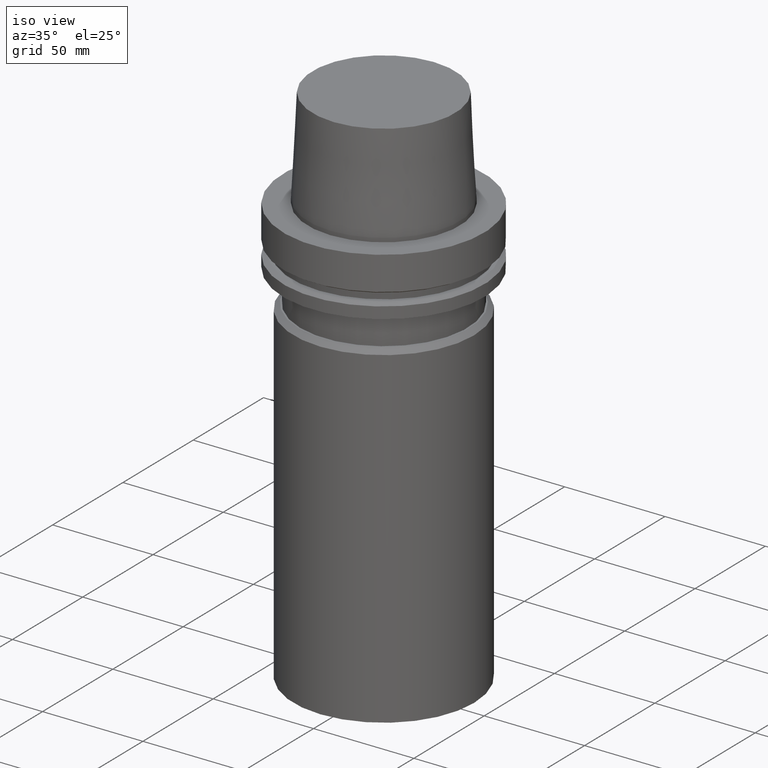
[diagram: clean part render]
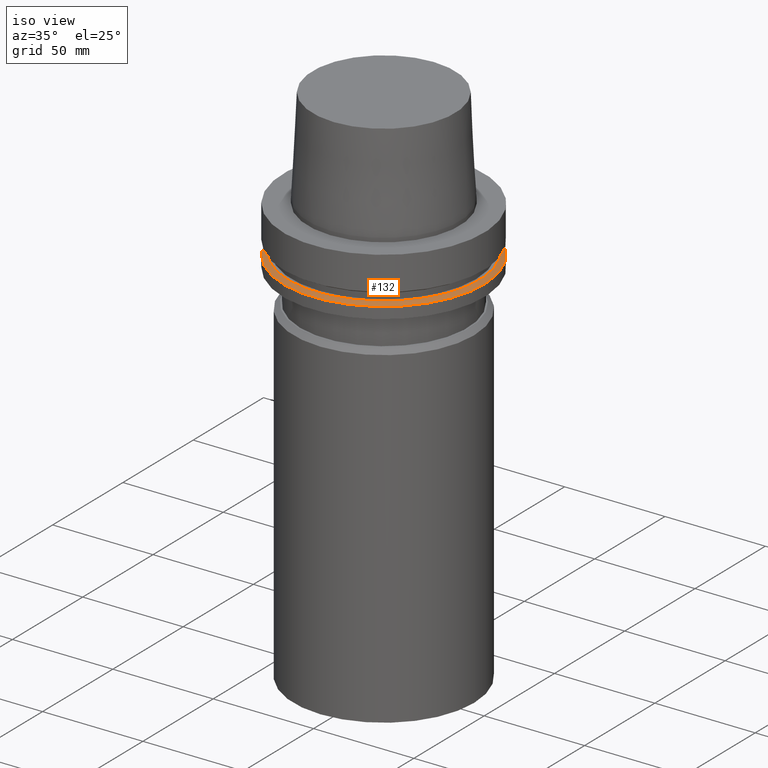
[diagram: same view with one face highlighted and labeled with its STEP entity id]
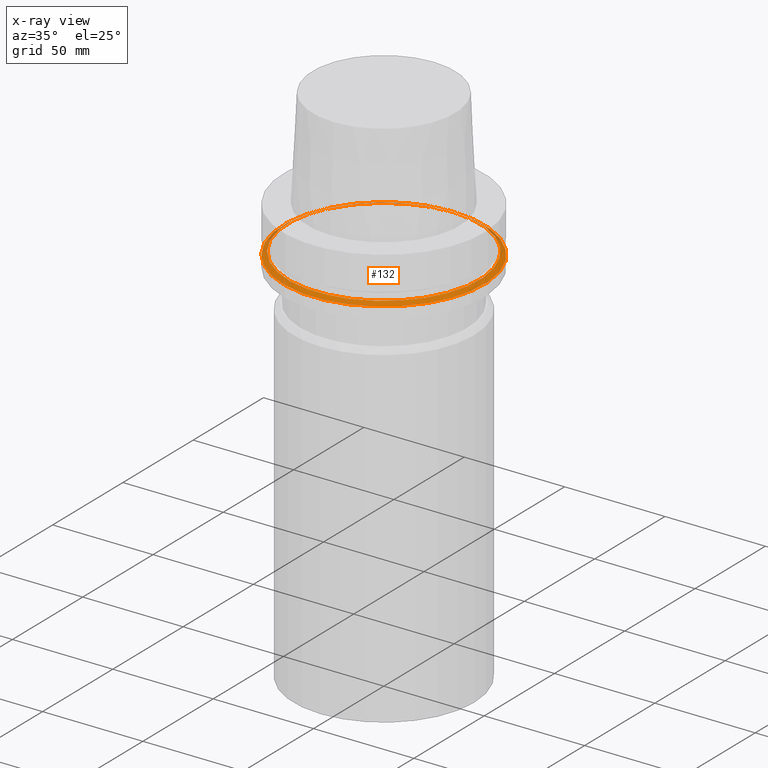
[diagram: x-ray of the same camera — body ghosted, the highlighted face saturated]
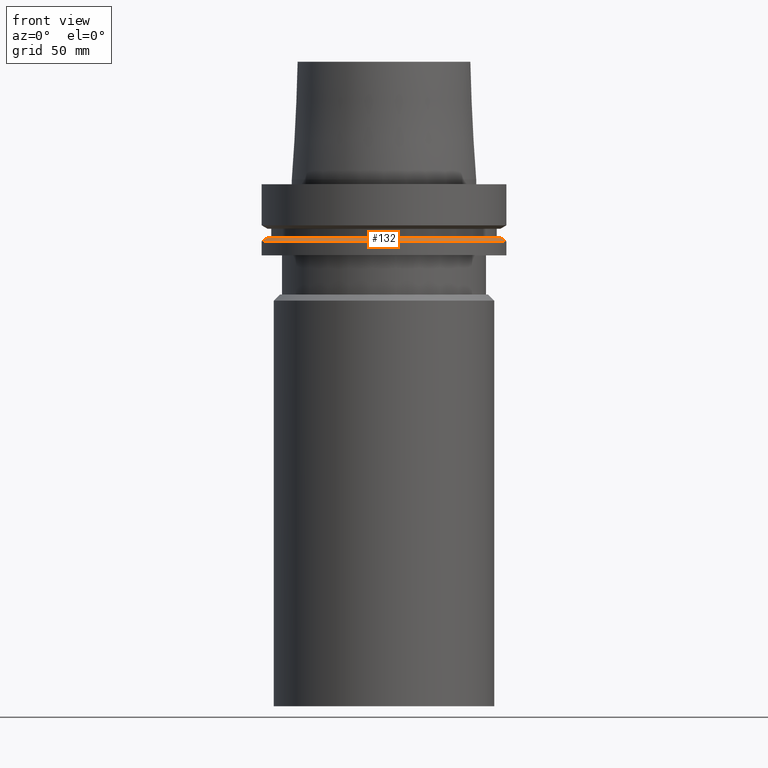
[diagram: same view with one face highlighted and labeled with its STEP entity id]
A machine part, iso view. The second image highlights one B-rep face of the part: STEP entity #132.
The next image is the same camera in x-ray: the body ghosted, the highlighted face saturated — about 9% of this face is hidden behind the body in this view.
A second angle (front view) of the same face is appended — the face is thin or edge-on in the first view.
In plain terms, the highlighted conical surface has half-angle 60 deg.
Its self-contained STEP definition (entity closure, byte-faithful):
#94=EDGE_CURVE('Unnamed[1]',#216,#216,#217,.T.);
#104=EDGE_CURVE('Unnamed[1]',#232,#232,#233,.T.);
#132=ADVANCED_FACE('Unnamed[1]',(#274,#275),#276,.T.);
#216=VERTEX_POINT('',#371);
#217=CIRCLE('',#372,47.62259526);
#232=VERTEX_POINT('',#391);
#233=CIRCLE('',#392,50.0);
#274=FACE_BOUND('',#443,.T.);
#275=FACE_BOUND('',#444,.T.);
#276=CONICAL_SURFACE('',#445,48.81129763,1.04719755328239);
#371=CARTESIAN_POINT('',(1.33945743656742E-015,47.62259526,-21.875));
#372=AXIS2_PLACEMENT_3D('',#531,#532,#533);
#391=CARTESIAN_POINT('',(1.42350465615161E-015,50.0,-23.24759526));
#392=AXIS2_PLACEMENT_3D('',#549,#550,#551);
#443=EDGE_LOOP('',(#593));
#444=EDGE_LOOP('',(#594));
#445=AXIS2_PLACEMENT_3D('',#595,#596,#597);
#531=CARTESIAN_POINT('',(1.33945743656742E-015,2.67891487313483E-015,-21.875));
#532=DIRECTION('',(6.12323399573677E-017,1.22464679914735E-016,-1.0));
#533=DIRECTION('',(-1.23259516440783E-032,1.0,1.22464679914735E-016));
#549=CARTESIAN_POINT('',(1.42350465615161E-015,2.84700931230322E-015,-23.24759526));
#550=DIRECTION('',(6.12323399573677E-017,1.22464679914735E-016,-1.0));
#551=DIRECTION('',(-1.23259516440783E-032,1.0,1.22464679914735E-016));
#593=ORIENTED_EDGE('',*,*,#104,.F.);
#594=ORIENTED_EDGE('',*,*,#94,.T.);
#595=CARTESIAN_POINT('',(1.38148104635951E-015,2.76296209271903E-015,-22.56129763));
#596=DIRECTION('',(6.12323399573677E-017,1.22464679914735E-016,-1.0));
#597=DIRECTION('',(-1.23259516440783E-032,1.0,1.22464679914735E-016));